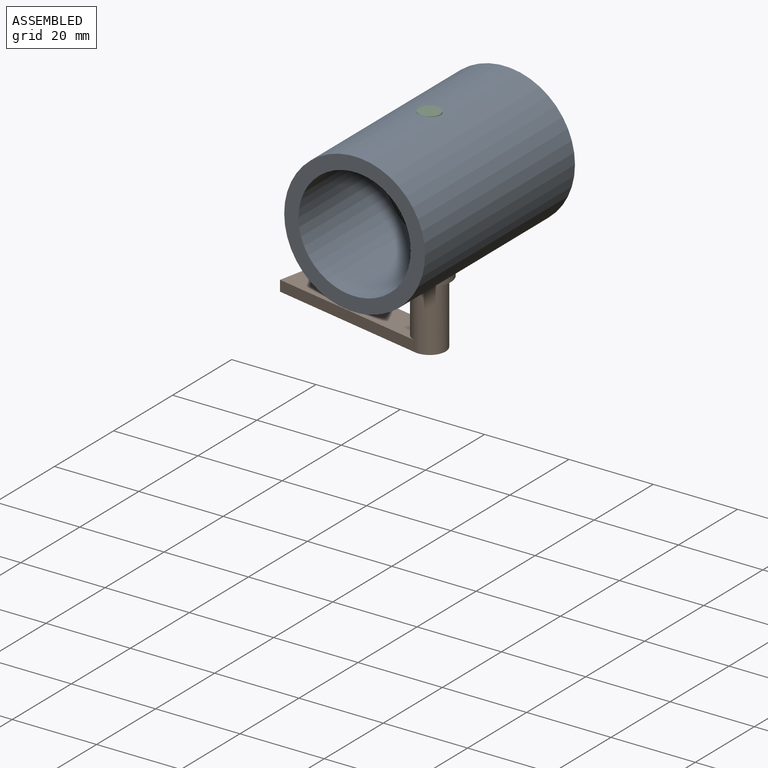
[diagram: assembled view]
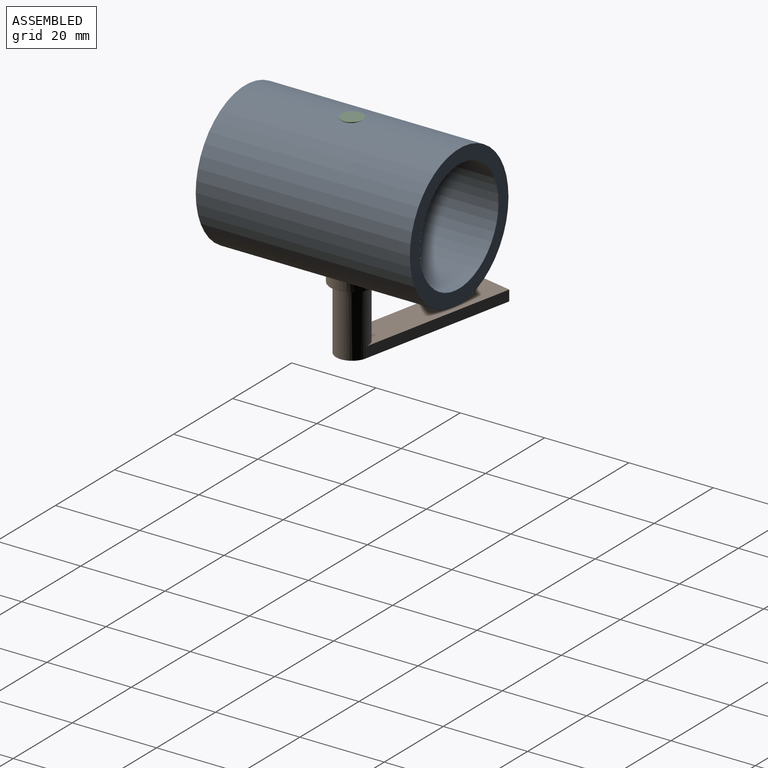
[diagram: assembled view, second angle]
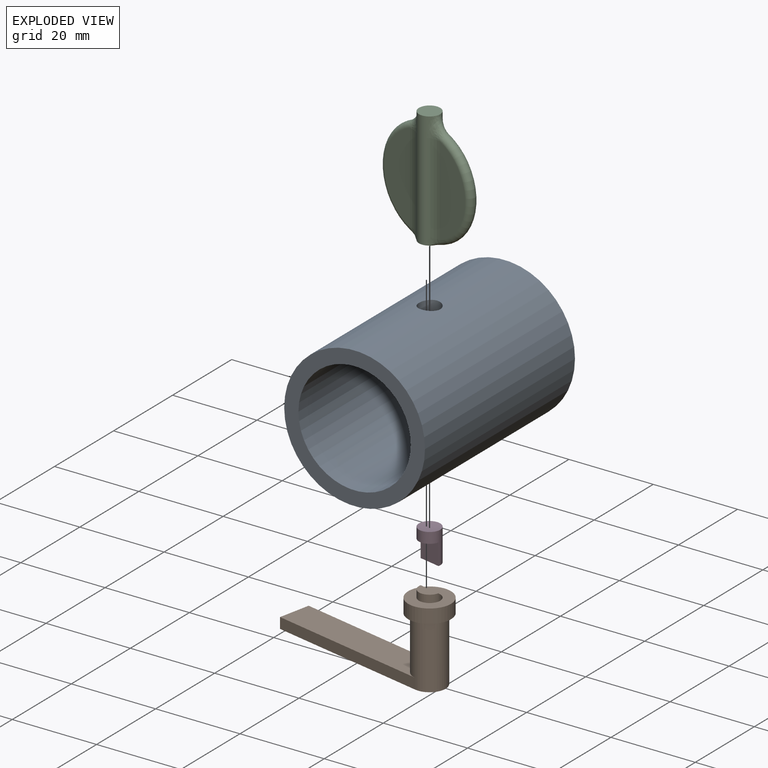
[diagram: exploded view]
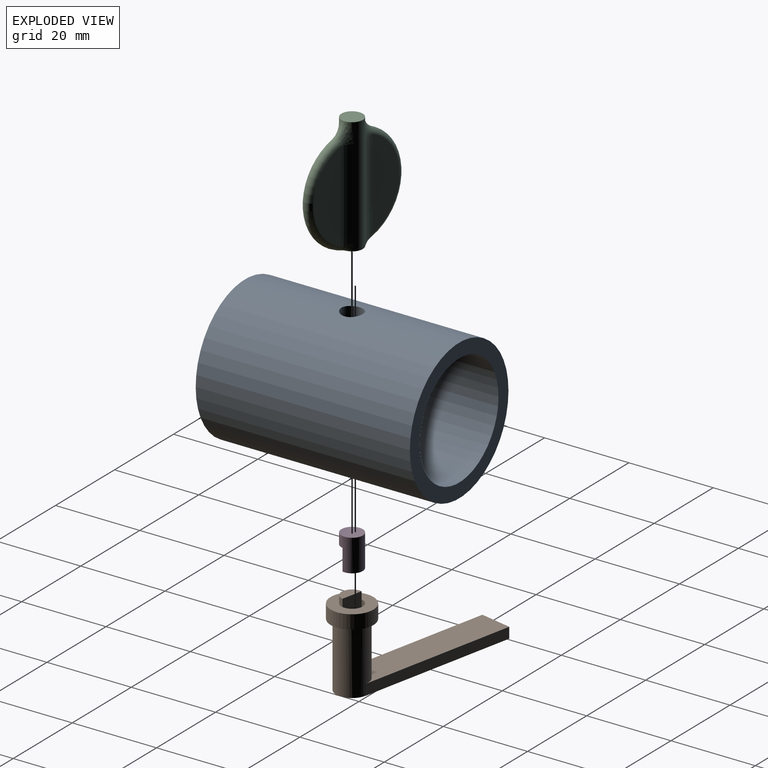
[diagram: exploded view, second angle]
ASSEMBLY  parts=4 mates=3
PART A: 6 faces, bbox 33.4x50.8x33.4 mm
  f0: cylinder r=13.32mm len=50.8mm, axis (0,1,0), area 4211.4mm2, adj f2,f3,f4,f5
  f1: cylinder r=16.7mm len=50.8mm, axis (0,1,0), area 5289.8mm2, adj f2,f3,f4,f5
  f2: plane 33.4x33.4mm, normal (0,-1,0), area 318.6mm2, adj f0,f1
  f3: plane 33.4x33.4mm, normal (0,1,0), area 318.6mm2, adj f0,f1
  f4: cylinder r=2.54mm len=5.08mm, axis (0,0,-1), area 54.3mm2, adj f0,f1
  f5: cylinder r=2.54mm len=5.08mm, axis (0,0,-1), area 54.3mm2, adj f0,f1
PART B: 14 faces, bbox 43.4x10.2x20.3 mm
  f0: cylinder r=2.54mm len=5.08mm, axis (0,0,1), area 26.3mm2, adj f2,f5,f8
  f1: cylinder r=5.08mm len=10.16mm, axis (0,0,1), area 105.4mm2, adj f2,f3
  f2: plane 10.16x10.16mm, normal (0,0,-1), area 60.8mm2, adj f0,f1,f4
  f3: plane 10.16x10.16mm, normal (0,0,1), area 35.5mm2, adj f1,f7
  f4: cylinder r=2.54mm len=5.08mm, axis (0,0,1), area 14.2mm2, adj f2,f5,f6
  f5: plane 5.08x5.08mm, normal (0,1,0), area 25.8mm2, adj f0,f4,f6,f8
  f6: plane 5.08x2.54mm, normal (0,0,-1), area 10.1mm2, adj f4,f5
  f7: cylinder r=3.81mm len=15.24mm, axis (0,0,-1), area 334.4mm2, adj f3,f9,f10,f12,f13
  f8: plane 5.08x2.54mm, normal (0,0,-1), area 10.1mm2, adj f0,f5
  f9: plane 38.35x7.62mm, normal (0,0,-1), area 269.5mm2, adj f7,f10,f11,f12
  f10: plane 38.35x2.54mm, normal (0,-1,0), area 97.4mm2, adj f7,f9,f11,f13
  f11: plane 7.62x2.54mm, normal (1,0,0), area 19.4mm2, adj f9,f10,f12,f13
  f12: plane 38.35x2.54mm, normal (0,1,0), area 97.4mm2, adj f7,f9,f11,f13
  f13: plane 42.16x7.62mm, normal (0,0,1), area 315.1mm2, adj f7,f10,f11,f12
PART C: 30 faces, bbox 27.5x5.1x29.2 mm
  f0: cylinder r=2.54mm len=27.68mm, axis (0,0,1), area 86.1mm2, adj f1,f3,f15,f17,f19,f22,f23,f24
  f1: plane 5.1x5.1mm, normal (0,0,1), area 20.3mm2, adj f0,f2,f10,f11,f13,f20,f21,f29
  f2: cylinder r=2.54mm len=27.68mm, axis (0,0,1), area 86.1mm2, adj f1,f3,f12,f14,f16,f26,f27,f28
  f3: plane 5.12x5.12mm, normal (0,0,-1), area 20.3mm2, adj f0,f2,f18,f25
  f4: plane 21.25x7.22mm, normal (0,1,0), area 111.2mm2, adj f9,f14
  f5: plane 21.25x7.22mm, normal (0,-1,0), area 111.2mm2, adj f9,f17
  f6: plane 21.25x7.22mm, normal (0,-1,0), area 111.2mm2, adj f8,f23
  f7: plane 21.25x7.22mm, normal (0,1,0), area 111.2mm2, adj f8,f27
  f8: torus R=11.43mm, axis (0,-1,0), area 118.5mm2, adj f6,f7,f20,f21,f22,f24,f25,f26
  f9: torus R=11.43mm, axis (0,-1,0), area 118.5mm2, adj f4,f5,f10,f11,f12,f13,f15,f16
  f10: bspline ~0.36x0.33mm, area 0mm2, adj f1,f9,f11
  f11: bspline ~2.8x2.14mm, area 2.7mm2, adj f1,f9,f10,f12
  f12: bspline ~3.87x3.18mm, area 3.2mm2, adj f2,f9,f11,f14
  f13: bspline ~2.8x2.14mm, area 2.7mm2, adj f1,f9,f15
  f14: cylinder r=5.08mm len=21.25mm, axis (0,0,1), area 63.2mm2, adj f2,f4,f12,f16
  f15: bspline ~3.87x3.18mm, area 3.2mm2, adj f0,f9,f13,f17
  f16: bspline ~5.86x3.75mm, area 9.8mm2, adj f2,f9,f14,f18
  f17: cylinder r=5.08mm len=21.25mm, axis (0,0,1), area 63.2mm2, adj f0,f5,f15,f19
  f18: bspline ~3.86x3.36mm, area 7.5mm2, adj f3,f9,f16,f19
  f19: bspline ~6.03x3.83mm, area 9.8mm2, adj f0,f9,f17,f18
  f20: bspline ~0.36x0.33mm, area 0mm2, adj f1,f8,f21
  f21: bspline ~2.8x2.14mm, area 2.7mm2, adj f1,f8,f20,f22
  f22: bspline ~3.87x3.18mm, area 3.2mm2, adj f0,f8,f21,f23
  f23: cylinder r=5.08mm len=21.25mm, axis (0,0,1), area 63.2mm2, adj f0,f6,f22,f24
  f24: bspline ~5.86x3.75mm, area 9.8mm2, adj f0,f8,f23,f25
  f25: bspline ~3.86x3.36mm, area 7.5mm2, adj f3,f8,f24,f26
  f26: bspline ~6.03x3.83mm, area 9.8mm2, adj f2,f8,f25,f27
  f27: cylinder r=5.08mm len=21.25mm, axis (0,0,1), area 63.2mm2, adj f2,f7,f26,f28
  f28: bspline ~3.87x3.18mm, area 3.2mm2, adj f2,f8,f27,f29
  f29: bspline ~2.8x2.14mm, area 2.7mm2, adj f1,f8,f28
PART D: 5 faces, bbox 5.1x5.1x7.6 mm
  f0: plane 5.08x2.54mm, normal (0,0,1), area 10.1mm2, adj f1,f3
  f1: cylinder r=2.54mm len=7.62mm, axis (0,0,1), area 81.1mm2, adj f0,f2,f3,f4
  f2: sphere r=12.7mm, area 20.5mm2, adj f1
  f3: plane 5.08x5.08mm, normal (0,-1,0), area 25.8mm2, adj f0,f1,f4
  f4: plane 5.08x2.54mm, normal (0,0,1), area 10.1mm2, adj f1,f3
PLACE A t=(-21.26,-2.5,-4.02)mm fixed
PLACE B rot(axis=(-0.1,-0.99,0),180deg) t=(-21.26,-2.5,-2.54)mm
PLACE C rot(axis=(-0.1,-0.99,0),180deg) t=(-21.26,-2.5,-2.54)mm
PLACE D rot(axis=(-0.1,-0.99,0),180deg) t=(-21.26,-2.5,-2.54)mm
MATE fastened D.f1 <-> B.f0  axis (0,0,-1) through (-21.26,-2.5,-22.6)mm
MATE revolute A.f4 <-> C.f0  axis (0,0,-1) through (-21.26,-2.5,12.7)mm
MATE fastened C.f0 <-> D.f1  axis (0,0,-1) through (-21.26,-2.5,-14.98)mm
